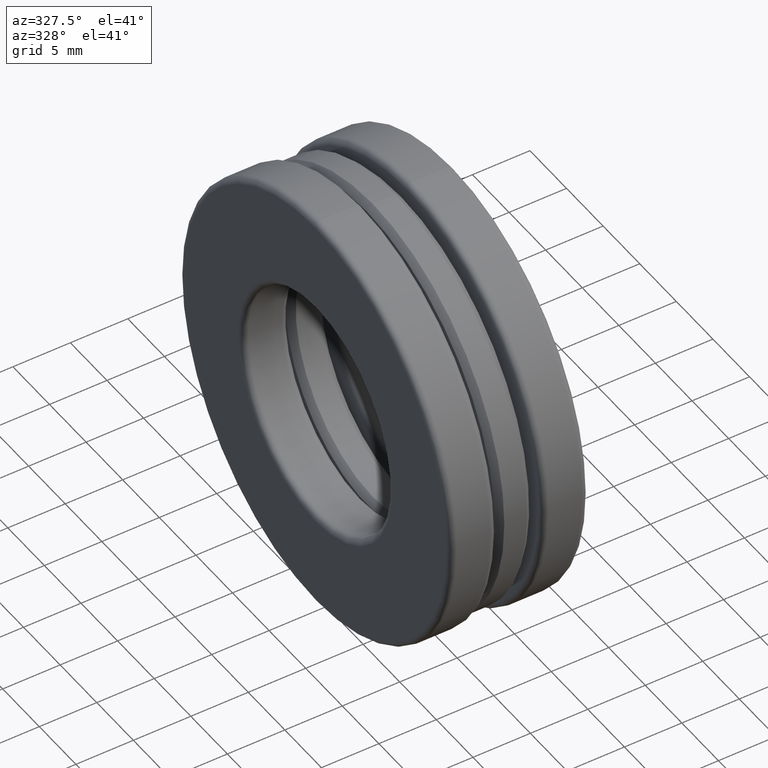
[diagram: clean part render]
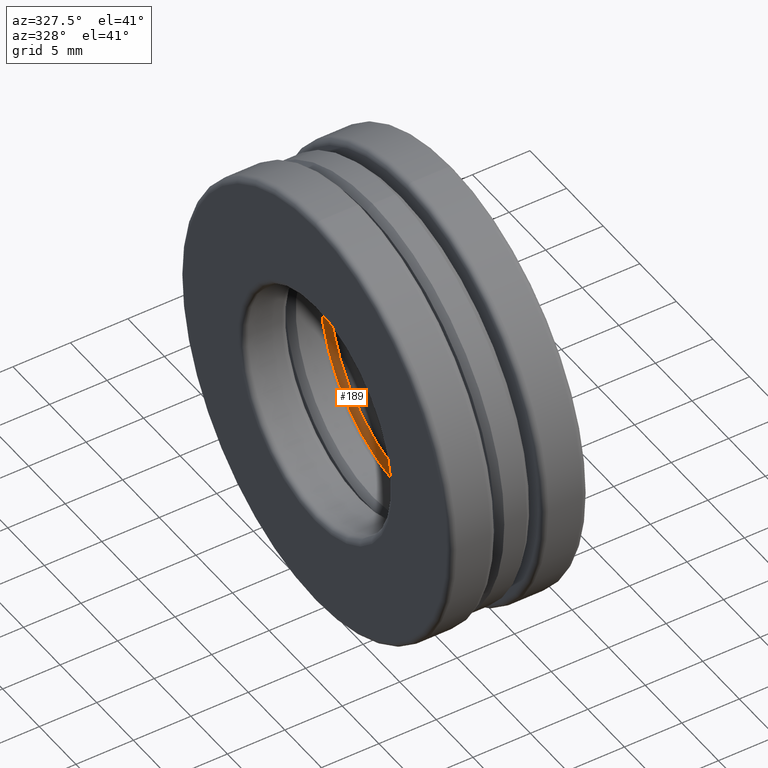
[diagram: same view with one face highlighted and labeled with its STEP entity id]
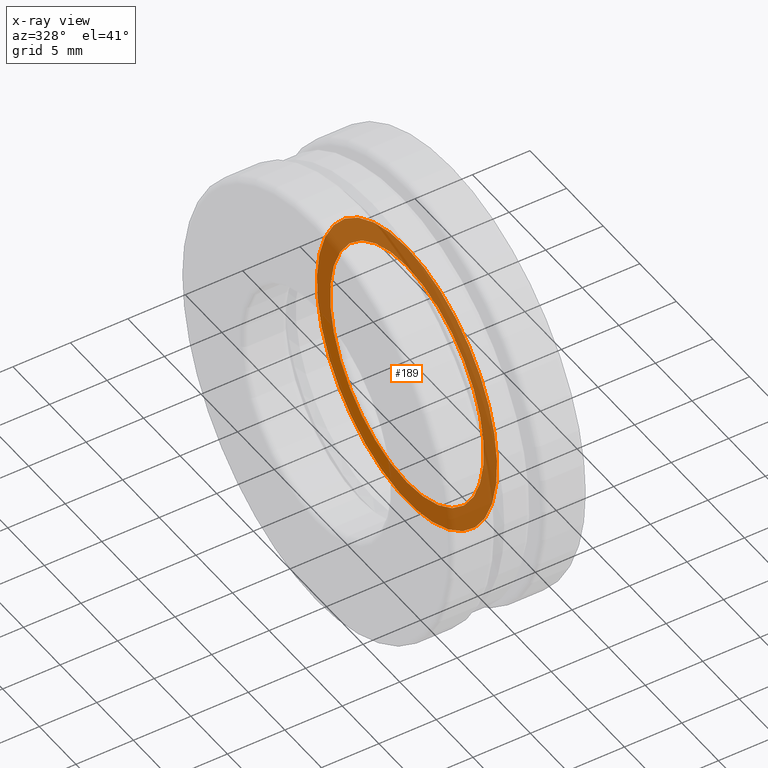
[diagram: x-ray of the same camera — body ghosted, the highlighted face saturated]
A machine part, auxiliary view. The second image highlights one B-rep face of the part: STEP entity #189.
The next image is the same camera in x-ray: the body ghosted, the highlighted face saturated — about 82% of this face is hidden behind the body in this view.
In plain terms, the highlighted planar face has unit normal (1, 0, 0).
Its self-contained STEP definition (entity closure, byte-faithful):
#131 = CARTESIAN_POINT ( 'NONE',  ( 0.07866824000000032000, 0.0000000000000000000, 0.4848320407566125700 ) ) ;
#132 = DIRECTION ( 'NONE',  ( 0.0000000000000000000, 0.0000000000000000000, -1.000000000000000000 ) ) ;
#154 = AXIS2_PLACEMENT_3D ( 'NONE', #599, #342, #665 ) ;
#168 = AXIS2_PLACEMENT_3D ( 'NONE', #314, #771, #132 ) ;
#189 = ADVANCED_FACE ( 'NONE', ( #535, #222 ), #192, .F. ) ;
#192 = PLANE ( 'NONE',  #168 ) ;
#222 = FACE_OUTER_BOUND ( 'NONE', #234, .T. ) ;
#234 = EDGE_LOOP ( 'NONE', ( #684 ) ) ;
#291 = CARTESIAN_POINT ( 'NONE',  ( 0.07866824000000032000, 0.0000000000000000000, 0.0000000000000000000 ) ) ;
#307 = AXIS2_PLACEMENT_3D ( 'NONE', #291, #748, #490 ) ;
#314 = CARTESIAN_POINT ( 'NONE',  ( 0.07866824000000029200, 2.276585525520125600E-017, 0.0000000000000000000 ) ) ;
#342 = DIRECTION ( 'NONE',  ( -1.000000000000000000, -0.0000000000000000000, -0.0000000000000000000 ) ) ;
#344 = ORIENTED_EDGE ( 'NONE', *, *, #353, .F. ) ;
#353 = EDGE_CURVE ( 'NONE', #802, #802, #472, .T. ) ;
#380 = CARTESIAN_POINT ( 'NONE',  ( 0.07866824000000036100, 0.0000000000000000000, 0.4134999999999999800 ) ) ;
#382 = VERTEX_POINT ( 'NONE', #131 ) ;
#472 = CIRCLE ( 'NONE', #154, 0.4134999999999999800 ) ;
#490 = DIRECTION ( 'NONE',  ( 0.0000000000000000000, 0.0000000000000000000, 1.000000000000000000 ) ) ;
#535 = FACE_BOUND ( 'NONE', #723, .T. ) ;
#552 = EDGE_CURVE ( 'NONE', #382, #382, #666, .T. ) ;
#599 = CARTESIAN_POINT ( 'NONE',  ( 0.07866824000000036100, 0.0000000000000000000, 0.0000000000000000000 ) ) ;
#665 = DIRECTION ( 'NONE',  ( 0.0000000000000000000, 0.0000000000000000000, 1.000000000000000000 ) ) ;
#666 = CIRCLE ( 'NONE', #307, 0.4848320407566125700 ) ;
#684 = ORIENTED_EDGE ( 'NONE', *, *, #552, .T. ) ;
#723 = EDGE_LOOP ( 'NONE', ( #344 ) ) ;
#748 = DIRECTION ( 'NONE',  ( -1.000000000000000000, -0.0000000000000000000, -0.0000000000000000000 ) ) ;
#771 = DIRECTION ( 'NONE',  ( 1.000000000000000000, 0.0000000000000000000, 0.0000000000000000000 ) ) ;
#802 = VERTEX_POINT ( 'NONE', #380 ) ;